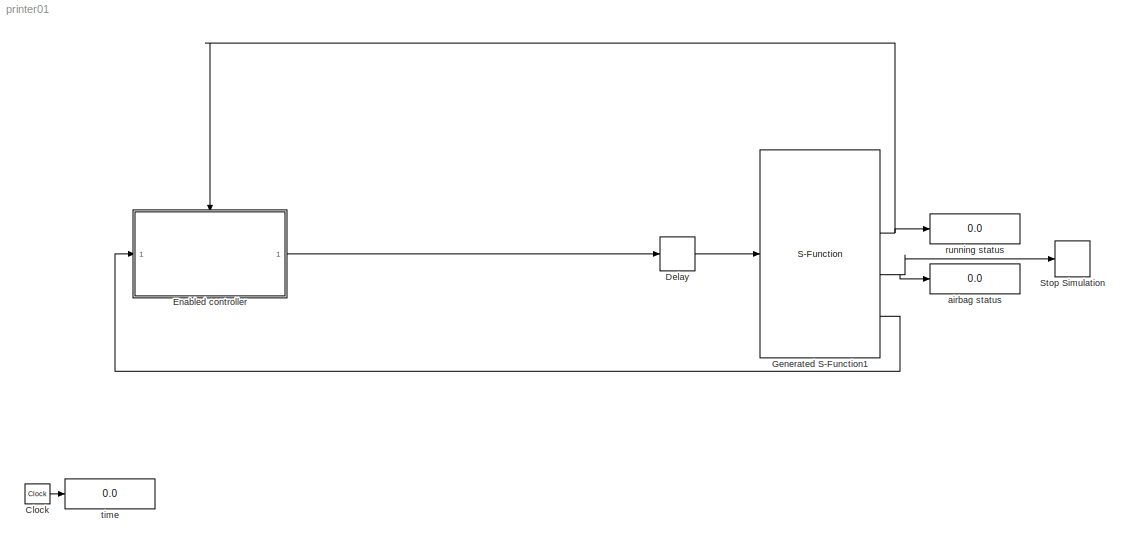
MODEL printer01
KIND model
BLOCK [Clock] Clock
  Decimation = 1
  SID = 506
BLOCK [Delay] Delay
  DelayLength = 1
  ExternalReset = None
  InputPortMap = u0
  Ports = [1, 1]
  SID = 779
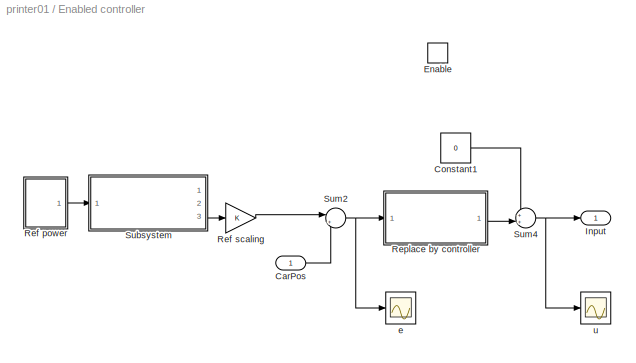
BLOCK [SubSystem] Enabled controller
  FunctionWithSeparateData = off
  MaskHideContents = off
  MinAlgLoopOccurrences = off
  Opaque = off
  Ports = [1, 1, 1]
  PropExecContextOutsideSubsystem = off
  RTWSystemCode = Auto
  RequestExecContextInheritance = off
  SID = 610
BLOCK [Inport] Enabled controller/CarPos
  IconDisplay = Port number
  SID = 698
BLOCK [Constant] Enabled controller/Constant1
  SID = 782
  Value = 0
BLOCK [EnablePort] Enabled controller/Enable
  Ports = []
  SID = 702
BLOCK [Outport] Enabled controller/Input
  IconDisplay = Port number
  SID = 699
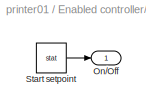
BLOCK [SubSystem] Enabled controller/Ref power
  FunctionWithSeparateData = off
  MaskEnableString = on
  MaskHideContents = off
  MaskIconFrame = on
  MaskIconOpaque = off
  MaskIconRotate = none
  MaskIconUnits = autoscale
  MaskPortRotate = default
  MaskPromptString = Switch
  MaskStyleString = popup(On|Off)
  MaskToolTipString = on
  MaskTunableValueString = on
  MaskType = On/Off Switch
  MaskValueString = Off
  MaskVariables = stat=@1;
  MaskVisibilityString = on
  MinAlgLoopOccurrences = off
  Opaque = off
  Ports = [0, 1]
  PropExecContextOutsideSubsystem = off
  RTWSystemCode = Auto
  RequestExecContextInheritance = off
  SID = 785
BLOCK [Outport] Enabled controller/Ref power/On//Off
  IconDisplay = Port number
  SID = 787
BLOCK [Constant] Enabled controller/Ref power/Start setpoint
  SID = 786
  Value = stat
BLOCK [Gain] Enabled controller/Ref scaling 
  SID = 784
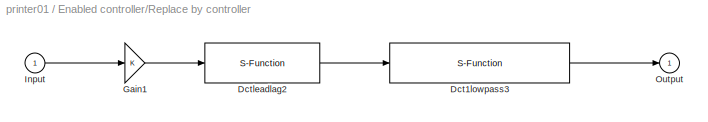
BLOCK [SubSystem] Enabled controller/Replace by controller
  FunctionWithSeparateData = off
  MaskHideContents = off
  MinAlgLoopOccurrences = off
  Opaque = off
  Ports = [1, 1]
  PropExecContextOutsideSubsystem = off
  RTWSystemCode = Auto
  RequestExecContextInheritance = off
  SID = 735
BLOCK [S-Function] Enabled controller/Replace by controller/Dct1lowpass3
  EnableBusSupport = off
  FunctionName = dlowpass1
  MaskDescription = This block implements a discrete time 1st order lowpass filter.
  MaskDisplay = disp('DCT 1st order lowpass')
  MaskEnableString = on
  MaskIconFrame = on
  MaskIconOpaque = on
  MaskIconRotate = none
  MaskIconUnits = autoscale
  MaskPortRotate = default
  MaskPromptString = Pole [Hz]
  MaskStyleString = edit
  MaskToolTipString = on
  MaskTunableValueString = on
  MaskType = dctools
  MaskValueString = 1
  MaskVariables = f_den=@1;
  MaskVisibilityString = on
  Parameters = [f_den 0.001]
  Ports = [1, 1]
  SID = 737
BLOCK [S-Function] Enabled controller/Replace by controller/Dctleadlag2
  EnableBusSupport = off
  FunctionName = dleadlag
  MaskCallbackString = |
  MaskDescription = This block implements a discrete time leadlag filter.
  MaskDisplay = disp('DCT leadlag')
  MaskEnableString = on,on
  MaskIconFrame = on
  MaskIconOpaque = on
  MaskIconRotate = none
  MaskIconUnits = autoscale
  MaskPortRotate = default
  MaskPromptString = Zero [Hz]|Pole [Hz]
  MaskStyleString = edit,edit
  MaskToolTipString = on,on
  MaskTunableValueString = on,on
  MaskType = dctools
  MaskValueString = 1|1
  MaskVariables = f_num=@1;f_den=@2;
  MaskVisibilityString = on,on
  Parameters = [f_num f_den 0.001]
  Ports = [1, 1]
  SID = 738
BLOCK [Gain] Enabled controller/Replace by controller/Gain1
  SID = 739
BLOCK [Inport] Enabled controller/Replace by controller/Input
  IconDisplay = Port number
  SID = 736
BLOCK [Outport] Enabled controller/Replace by controller/Output
  IconDisplay = Port number
  SID = 740
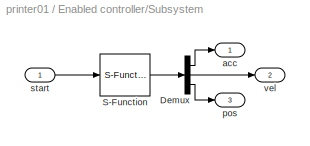
BLOCK [SubSystem] Enabled controller/Subsystem
  FunctionWithSeparateData = off
  MaskDisplay = disp('Ref3');\n
  MaskHideContents = off
  MaskIconFrame = off
  MaskIconOpaque = off
  MaskIconRotate = none
  MaskIconUnits = autoscale
  MaskPortRotate = default
  MaskType = Ref3
  MinAlgLoopOccurrences = off
  Opaque = off
  OpenFcn = global ref_part; cb_axes 1
  Ports = [1, 3]
  PropExecContextOutsideSubsystem = off
  RTWSystemCode = Auto
  RequestExecContextInheritance = off
  SID = 788
BLOCK [Demux] Enabled controller/Subsystem/Demux
  Outputs = 3
  Ports = [1, 3]
  SID = 790
BLOCK [S-Function] Enabled controller/Subsystem/S-Function
  EnableBusSupport = off
  FunctionName = ref3b
  OpenFcn = global ref_part; r3g_main
  Parameters = ref_part
  Ports = [1, 1]
  SID = 791
BLOCK [Outport] Enabled controller/Subsystem/acc
  IconDisplay = Port number
  SID = 792
BLOCK [Outport] Enabled controller/Subsystem/pos
  IconDisplay = Port number
  Port = 3
  SID = 794
BLOCK [Inport] Enabled controller/Subsystem/start
  IconDisplay = Port number
  SID = 789
BLOCK [Outport] Enabled controller/Subsystem/vel
  IconDisplay = Port number
  Port = 2
  SID = 793
BLOCK [Sum] Enabled controller/Sum2
  IconShape = round
  InputSameDT = off
  Inputs = |+-
  OutDataTypeStr = Inherit: Inherit via internal rule
  Ports = [2, 1]
  SID = 272
  SaturateOnIntegerOverflow = off
BLOCK [Sum] Enabled controller/Sum4
  IconShape = round
  Inputs = ++|
  Ports = [2, 1]
  SID = 582
BLOCK [Scope] Enabled controller/e
  DataFormat = Array
  Floating = off
  LimitDataPoints = off
  NumInputPorts = 1
  Ports = [1]
  SID = 706
  SampleTime = 0
  SaveName = e
  SaveToWorkspace = on
BLOCK [Scope] Enabled controller/u
  DataFormat = Array
  Floating = off
  LimitDataPoints = off
  NumInputPorts = 1
  Ports = [1]
  SID = 705
  SampleTime = 0
  SaveName = u
  SaveToWorkspace = on
BLOCK [S-Function] Generated S-Function1
  CopyFcn = if ~strcmp(get_param(gcb,'Linkstatus'),'none') && ...\n~strcmp(get_param(gcb,'Linkstatus'),'implicit')      \n  set_param(gcb,'LinkStatus','none');                \nend
  EnableBusSupport = off
  FunctionName = printer_supervisor01_sf
  MaskCallbackString = |
  MaskDescription = Simulink Coder generated S-function.
  MaskDisplay = \nport_label('input',1,'motor [-]');\nport_label('output',1,'time [s]');\nport_label('output',2,'running status');\nport_label('output',3,'airbag status');\nport_label('output',4,'CarPos [counts]');
  MaskEnableString = on,on
  MaskHelp = eval('feval(''rtwprivate'',''rtwhelpview'',''rtw_sfcn_block'')');
  MaskIconFrame = on
  MaskIconOpaque = on
  MaskIconRotate = none
  MaskIconUnits = autoscale
  MaskInitialization = displist = '';\nif ~strcmp(get_param(gcb, 'FunctionName'), rtw_sf_name);\n  set_param(gcb, 'FunctionName', rtw_sf_name);\nend\n% Check if we are generating code\nrtw_mode = false;\nif strcmpi(get_param(bdroot(gcb),'SimulationStatus'),'Initializing')\n	rtw_mode = strcmpi(get_param(bdroot(gcb),'BuildingRTWCode'),'on') && ...\n		~strcmpi(get_param(bdroot(gcb),'TargetStyle'),'SimulationTarget');\nend\...<+289ch>
  MaskPortRotate = default
  MaskPromptString = Generated S-function name (model_sf):|Show module list
  MaskStyleString = edit,checkbox
  MaskToolTipString = on,on
  MaskTunableValueString = on,on
  MaskValueString = printer_supervisor01_sf|off
  MaskVariables = rtw_sf_name=&1;showVar=@2;
  MaskVisibilityString = on,on
  Ports = [1, 4]
  SID = 795
BLOCK [Stop] Stop Simulation
  SID = 783
BLOCK [Display] airbag status
  Decimation = 50
  Lockdown = off
  Ports = [1]
  SID = 559
BLOCK [Display] running status
  Decimation = 50
  Lockdown = off
  Ports = [1]
  SID = 594
BLOCK [Display] time
  Decimation = 50
  Lockdown = off
  Ports = [1]
  SID = 507
LINE Clock:1 -> time:1
LINE Delay:1 -> Generated S-Function1:1
LINE Enabled controller/CarPos:1 -> Enabled controller/Sum2:2
LINE Enabled controller/Constant1:1 -> Enabled controller/Sum4:1
LINE Enabled controller/Ref power/Start setpoint:1 -> Enabled controller/Ref power/On//Off:1
LINE Enabled controller/Ref power:1 -> Enabled controller/Subsystem:1
LINE Enabled controller/Ref scaling :1 -> Enabled controller/Sum2:1
LINE Enabled controller/Replace by controller/Dct1lowpass3:1 -> Enabled controller/Replace by controller/Output:1
LINE Enabled controller/Replace by controller/Dctleadlag2:1 -> Enabled controller/Replace by controller/Dct1lowpass3:1
LINE Enabled controller/Replace by controller/Gain1:1 -> Enabled controller/Replace by controller/Dctleadlag2:1
LINE Enabled controller/Replace by controller/Input:1 -> Enabled controller/Replace by controller/Gain1:1
LINE Enabled controller/Replace by controller:1 -> Enabled controller/Sum4:2
LINE Enabled controller/Subsystem/Demux:1 -> Enabled controller/Subsystem/acc:1
LINE Enabled controller/Subsystem/Demux:2 -> Enabled controller/Subsystem/vel:1
LINE Enabled controller/Subsystem/Demux:3 -> Enabled controller/Subsystem/pos:1
LINE Enabled controller/Subsystem/S-Function:1 -> Enabled controller/Subsystem/Demux:1
LINE Enabled controller/Subsystem/start:1 -> Enabled controller/Subsystem/S-Function:1
LINE Enabled controller/Subsystem:3 -> Enabled controller/Ref scaling :1
NET Enabled controller/Sum2:1 -> Enabled controller/Replace by controller:1, Enabled controller/e:1
NET Enabled controller/Sum4:1 -> Enabled controller/Input:1, Enabled controller/u:1
LINE Enabled controller:1 -> Delay:1
NET Generated S-Function1:2 -> Enabled controller:enable, running status:1
NET Generated S-Function1:3 -> Stop Simulation:1, airbag status:1
LINE Generated S-Function1:4 -> Enabled controller:1
note: NET lines group one-source signal fan-out (src -> all destinations, sorted); 1:1 wires keep LINE
